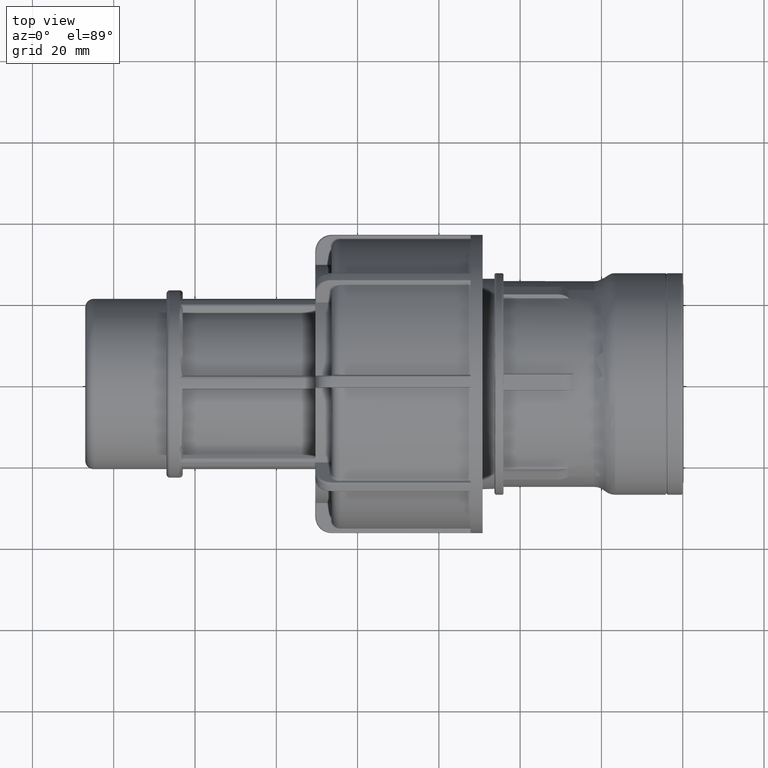
[diagram: clean part render]
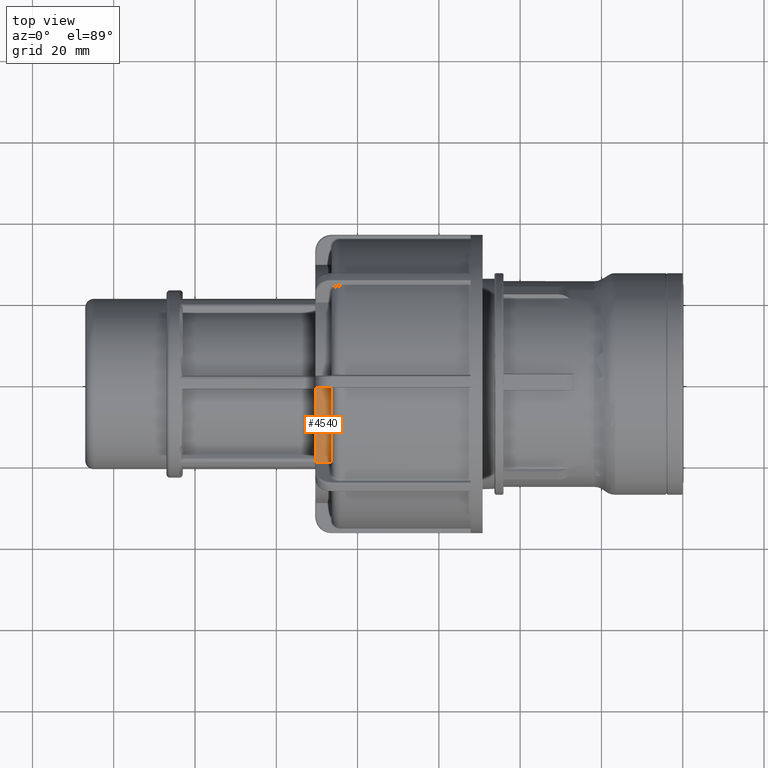
[diagram: same view with one face highlighted and labeled with its STEP entity id]
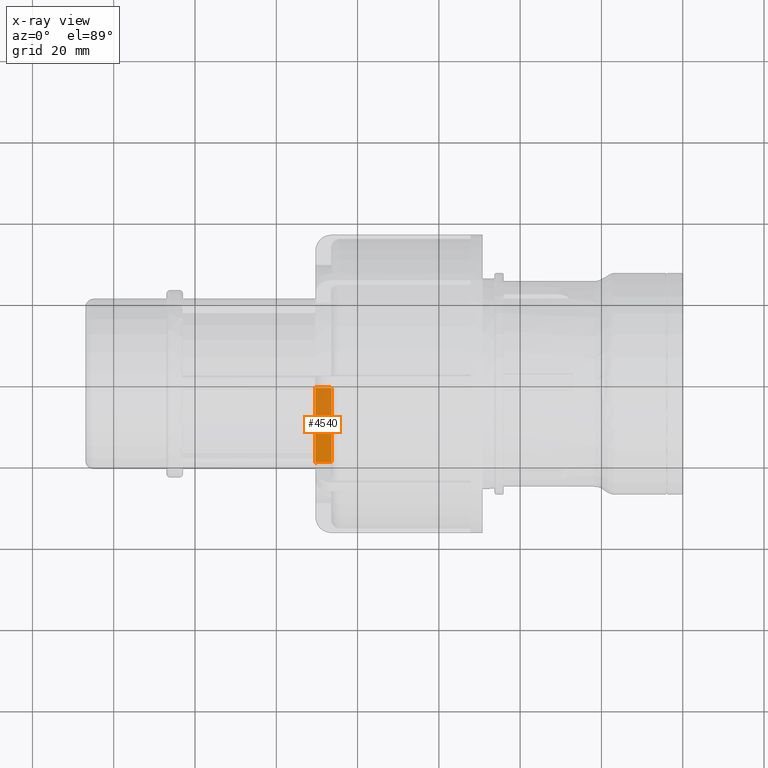
[diagram: x-ray of the same camera — body ghosted, the highlighted face saturated]
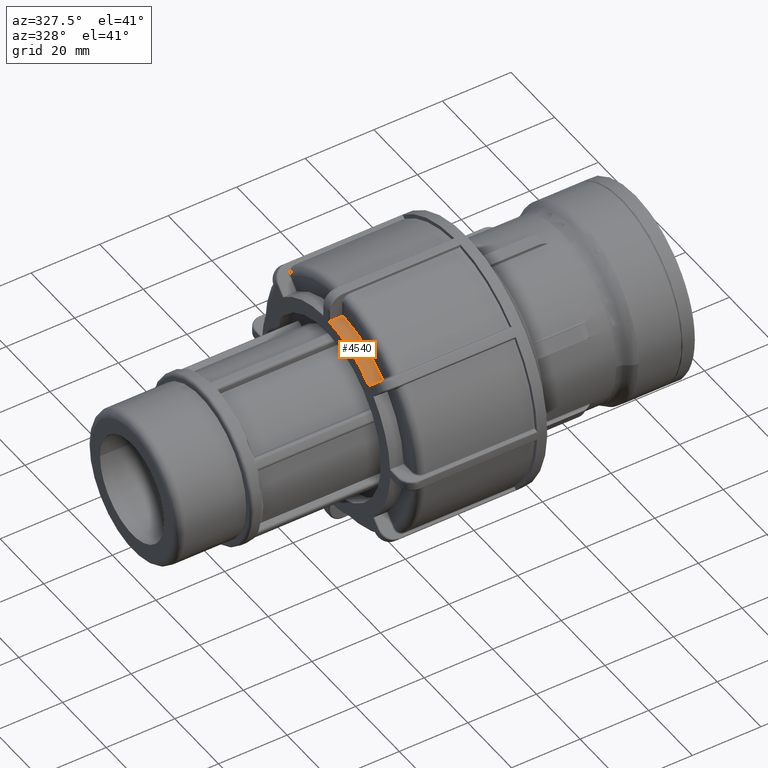
[diagram: same view with one face highlighted and labeled with its STEP entity id]
A machine part, top view. The second image highlights one B-rep face of the part: STEP entity #4540.
The next image is the same camera in x-ray: the body ghosted, the highlighted face saturated — about 0% of this face is hidden behind the body in this view.
A second angle (auxiliary view) of the same face is appended — the face is thin or edge-on in the first view.
In plain terms, the highlighted cylindrical surface (partial cylindrical patch) has radius 29.337 mm, axis along (1, 0, 0).
Its self-contained STEP definition (entity closure, byte-faithful):
#373=LINE('',#8628,#652);
#380=LINE('',#8793,#659);
#652=VECTOR('',#5988,3.26600000000003);
#659=VECTOR('',#6029,3.26600000000003);
#804=CYLINDRICAL_SURFACE('',#4985,29.337);
#1025=FACE_OUTER_BOUND('',#1309,.T.);
#1309=EDGE_LOOP('',(#3942,#3943,#3944,#3945,#3946,#3947,#3948,#3949));
#1508=B_SPLINE_CURVE_WITH_KNOTS('',3,(#8438,#8439,#8440,#8441,#8442,#8443,
#8444,#8445,#8446,#8447),.UNSPECIFIED.,.F.,.F.,(4,2,2,2,4),(-0.055323277266335,
-0.0414859366141321,-0.0276485959619292,-0.0138242979809646,0.),
 .UNSPECIFIED.);
#1515=B_SPLINE_CURVE_WITH_KNOTS('',3,(#8559,#8560,#8561,#8562,#8563,#8564,
#8565,#8566,#8567,#8568),.UNSPECIFIED.,.F.,.F.,(4,2,2,2,4),(0.221409990795445,
0.235232708544677,0.249055426293909,0.262904309172962,0.276753192052015),
 .UNSPECIFIED.);
#1524=B_SPLINE_CURVE_WITH_KNOTS('',3,(#8746,#8747,#8748,#8749,#8750,#8751,
#8752,#8753,#8754,#8755),.UNSPECIFIED.,.F.,.F.,(4,2,2,2,4),(0.,0.0138242979809646,
0.0276485959619291,0.041485936614132,0.0553232772663348),.UNSPECIFIED.);
#1534=B_SPLINE_CURVE_WITH_KNOTS('',3,(#8946,#8947,#8948,#8949,#8950,#8951,
#8952,#8953,#8954,#8955),.UNSPECIFIED.,.F.,.F.,(4,2,2,2,4),(0.166066787688514,
0.179915670567567,0.19376455344662,0.207587271195852,0.221409988945084),
 .UNSPECIFIED.);
#1660=CIRCLE('',#4810,29.337);
#1756=CIRCLE('',#4986,29.337);
#2041=VERTEX_POINT('',#7448);
#2042=VERTEX_POINT('',#7450);
#2158=VERTEX_POINT('',#8436);
#2167=VERTEX_POINT('',#8557);
#2168=VERTEX_POINT('',#8558);
#2186=VERTEX_POINT('',#8745);
#2188=VERTEX_POINT('',#8792);
#2207=VERTEX_POINT('',#8945);
#2558=EDGE_CURVE('',#2042,#2041,#1660,.T.);
#2746=EDGE_CURVE('',#2158,#2041,#1508,.F.);
#2763=EDGE_CURVE('',#2167,#2168,#1515,.T.);
#2778=EDGE_CURVE('',#2158,#2167,#373,.T.);
#2796=EDGE_CURVE('',#2042,#2186,#1524,.F.);
#2801=EDGE_CURVE('',#2188,#2186,#380,.T.);
#2830=EDGE_CURVE('',#2207,#2188,#1534,.T.);
#2832=EDGE_CURVE('',#2207,#2168,#1756,.T.);
#3942=ORIENTED_EDGE('',*,*,#2763,.T.);
#3943=ORIENTED_EDGE('',*,*,#2832,.F.);
#3944=ORIENTED_EDGE('',*,*,#2830,.T.);
#3945=ORIENTED_EDGE('',*,*,#2801,.T.);
#3946=ORIENTED_EDGE('',*,*,#2796,.F.);
#3947=ORIENTED_EDGE('',*,*,#2558,.T.);
#3948=ORIENTED_EDGE('',*,*,#2746,.F.);
#3949=ORIENTED_EDGE('',*,*,#2778,.T.);
#4540=ADVANCED_FACE('',(#1025),#804,.T.);
#4810=AXIS2_PLACEMENT_3D('',#7451,#5620,#5621);
#4985=AXIS2_PLACEMENT_3D('',#8957,#6076,#6077);
#4986=AXIS2_PLACEMENT_3D('',#8958,#6078,#6079);
#5620=DIRECTION('center_axis',(1.,0.,0.));
#5621=DIRECTION('ref_axis',(0.,0.,-1.));
#5988=DIRECTION('',(1.,0.,0.));
#6029=DIRECTION('',(-1.,0.,0.));
#6076=DIRECTION('center_axis',(1.,0.,0.));
#6077=DIRECTION('ref_axis',(0.,1.,0.));
#6078=DIRECTION('center_axis',(1.,0.,0.));
#6079=DIRECTION('ref_axis',(0.,0.,-1.));
#7448=CARTESIAN_POINT('',(-90.405,-19.9512531461806,21.5083022783534));
#7450=CARTESIAN_POINT('',(-90.405,-1.10099999999998,29.3163327856674));
#7451=CARTESIAN_POINT('Origin',(-90.405,0.,0.));
#8436=CARTESIAN_POINT('',(-90.038,-19.6803714429357,21.7564369524994));
#8438=CARTESIAN_POINT('Ctrl Pts',(-90.405,-19.9512531461806,21.5083022783534));
#8439=CARTESIAN_POINT('Ctrl Pts',(-90.405,-19.9174371793723,21.5396702080692));
#8440=CARTESIAN_POINT('Ctrl Pts',(-90.3957869445152,-19.8812846332342,21.5730419431046));
#8441=CARTESIAN_POINT('Ctrl Pts',(-90.3583187863431,-19.814627997762,21.6342814684689));
#8442=CARTESIAN_POINT('Ctrl Pts',(-90.3300636788828,-19.7841281088897,21.6621538277456));
#8443=CARTESIAN_POINT('Ctrl Pts',(-90.2648876386904,-19.7359198426566,21.706084387663));
#8444=CARTESIAN_POINT('Ctrl Pts',(-90.2236323356673,-19.7149895402516,21.7250801551308));
#8445=CARTESIAN_POINT('Ctrl Pts',(-90.1332291521805,-19.6872130010056,21.7502543564948));
#8446=CARTESIAN_POINT('Ctrl Pts',(-90.0840809932699,-19.6803714429357,21.7564369524994));
#8447=CARTESIAN_POINT('Ctrl Pts',(-90.038,-19.6803714429357,21.7564369524994));
#8557=CARTESIAN_POINT('',(-86.772,-19.6803714429357,21.7564369524994));
#8558=CARTESIAN_POINT('',(-86.405,-19.4062309833963,22.0013128703509));
#8559=CARTESIAN_POINT('Ctrl Pts',(-86.772,-19.6803714429357,21.7564369524994));
#8560=CARTESIAN_POINT('Ctrl Pts',(-86.7259242741692,-19.6803714429357,21.7564369524994));
#8561=CARTESIAN_POINT('Ctrl Pts',(-86.6767812229423,-19.6735376967024,21.7626247201668));
#8562=CARTESIAN_POINT('Ctrl Pts',(-86.5863884106015,-19.6457173653444,21.7877421826011));
#8563=CARTESIAN_POINT('Ctrl Pts',(-86.5451386522406,-19.6247266044578,21.8066672617779));
#8564=CARTESIAN_POINT('Ctrl Pts',(-86.4799430854771,-19.5761770871868,21.8502614639376));
#8565=CARTESIAN_POINT('Ctrl Pts',(-86.4516770410474,-19.5453653643198,21.8778498508409));
#8566=CARTESIAN_POINT('Ctrl Pts',(-86.4142058810725,-19.4777042355576,21.9381097415625));
#8567=CARTESIAN_POINT('Ctrl Pts',(-86.405,-19.4408509292129,21.9707763896823));
#8568=CARTESIAN_POINT('Ctrl Pts',(-86.405,-19.4062309833963,22.0013128703509));
#8628=CARTESIAN_POINT('',(-88.405,-19.6803714429357,21.7564369524994));
#8745=CARTESIAN_POINT('',(-90.038,-1.46799999999998,29.3002482071398));
#8746=CARTESIAN_POINT('Ctrl Pts',(-90.038,-1.46799999999998,29.3002482071398));
#8747=CARTESIAN_POINT('Ctrl Pts',(-90.0840809932699,-1.46799999999998,29.3002482071398));
#8748=CARTESIAN_POINT('Ctrl Pts',(-90.1332291521805,-1.45879053233468,29.3007141636848));
#8749=CARTESIAN_POINT('Ctrl Pts',(-90.2236323356673,-1.4213487045805,29.302554294448));
#8750=CARTESIAN_POINT('Ctrl Pts',(-90.2648876386904,-1.39311670982727,29.3039222172206));
#8751=CARTESIAN_POINT('Ctrl Pts',(-90.3300636788828,-1.32796472104568,29.3069470123643));
#8752=CARTESIAN_POINT('Ctrl Pts',(-90.3583187863431,-1.28668930854648,29.3088049563592));
#8753=CARTESIAN_POINT('Ctrl Pts',(-90.3957869445152,-1.1962530659312,29.3126354316509));
#8754=CARTESIAN_POINT('Ctrl Pts',(-90.405,-1.14709197525633,29.3146017620388));
#8755=CARTESIAN_POINT('Ctrl Pts',(-90.405,-1.10099999999998,29.3163327856674));
#8792=CARTESIAN_POINT('',(-86.772,-1.46799999999998,29.3002482071398));
#8793=CARTESIAN_POINT('',(-88.405,-1.46799999999998,29.3002482071398));
#8945=CARTESIAN_POINT('',(-86.405,-1.83499999999998,29.279555051264));
#8946=CARTESIAN_POINT('Ctrl Pts',(-86.405,-1.83499999999998,29.279555051264));
#8947=CARTESIAN_POINT('Ctrl Pts',(-86.405,-1.78892744899434,29.2824424971609));
#8948=CARTESIAN_POINT('Ctrl Pts',(-86.4142058810725,-1.73976941776473,29.2854029115822));
#8949=CARTESIAN_POINT('Ctrl Pts',(-86.4516770410474,-1.64931559743146,29.2906363771899));
#8950=CARTESIAN_POINT('Ctrl Pts',(-86.4799430854771,-1.60802048379084,29.2929156199079));
#8951=CARTESIAN_POINT('Ctrl Pts',(-86.5451386522405,-1.54286503493766,29.296419556826));
#8952=CARTESIAN_POINT('Ctrl Pts',(-86.5863884106014,-1.5146402737521,29.2978802143708));
#8953=CARTESIAN_POINT('Ctrl Pts',(-86.6767812229422,-1.47720760078042,29.2997914313154));
#8954=CARTESIAN_POINT('Ctrl Pts',(-86.7259242741692,-1.46799999999998,29.3002482071398));
#8955=CARTESIAN_POINT('Ctrl Pts',(-86.772,-1.46799999999998,29.3002482071398));
#8957=CARTESIAN_POINT('Origin',(-88.405,0.,0.));
#8958=CARTESIAN_POINT('Origin',(-86.405,0.,0.));